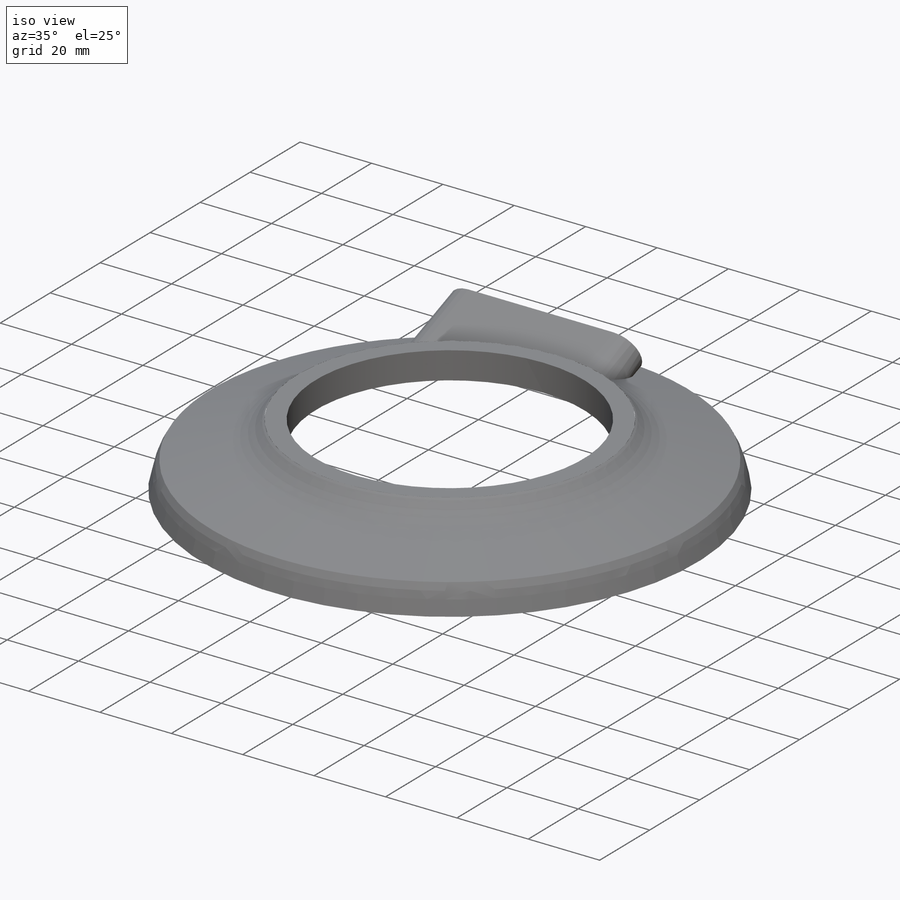
[diagram: iso view]
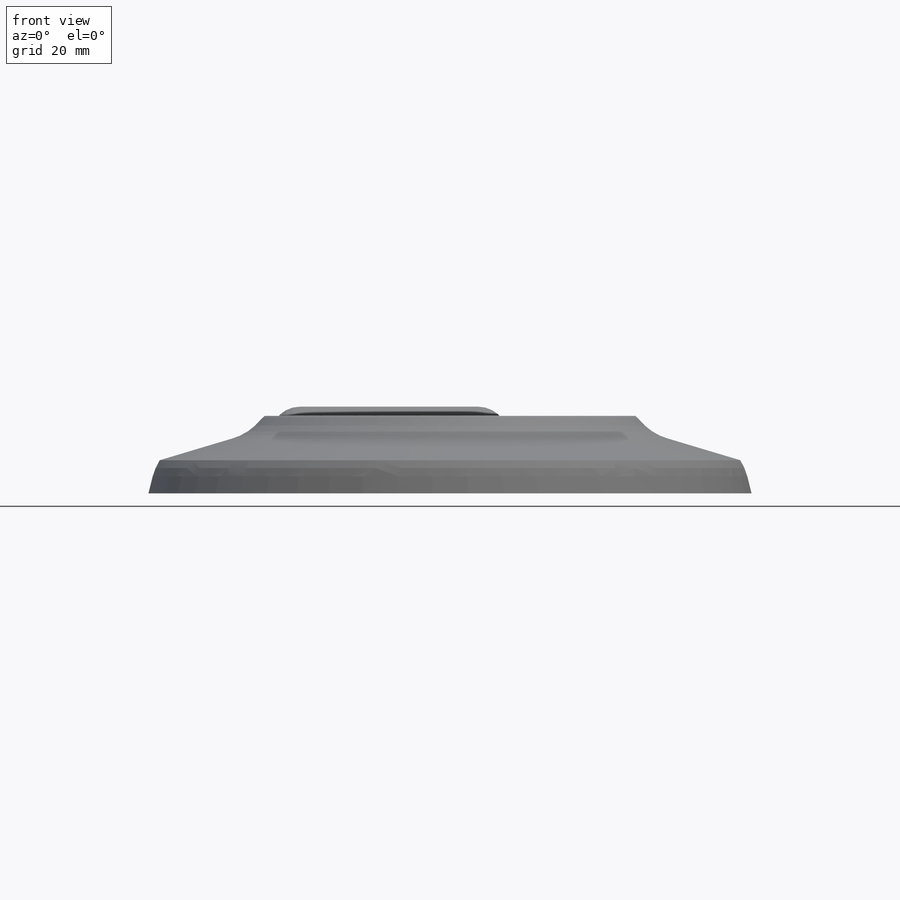
[diagram: front view]
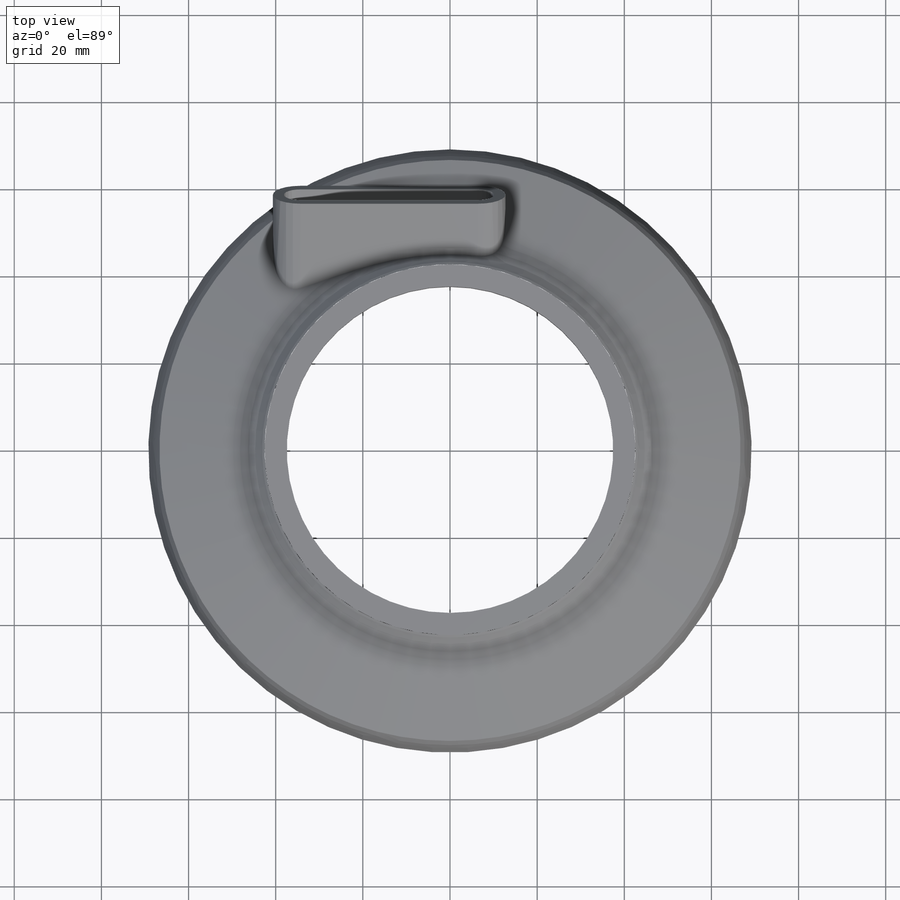
[diagram: top view]
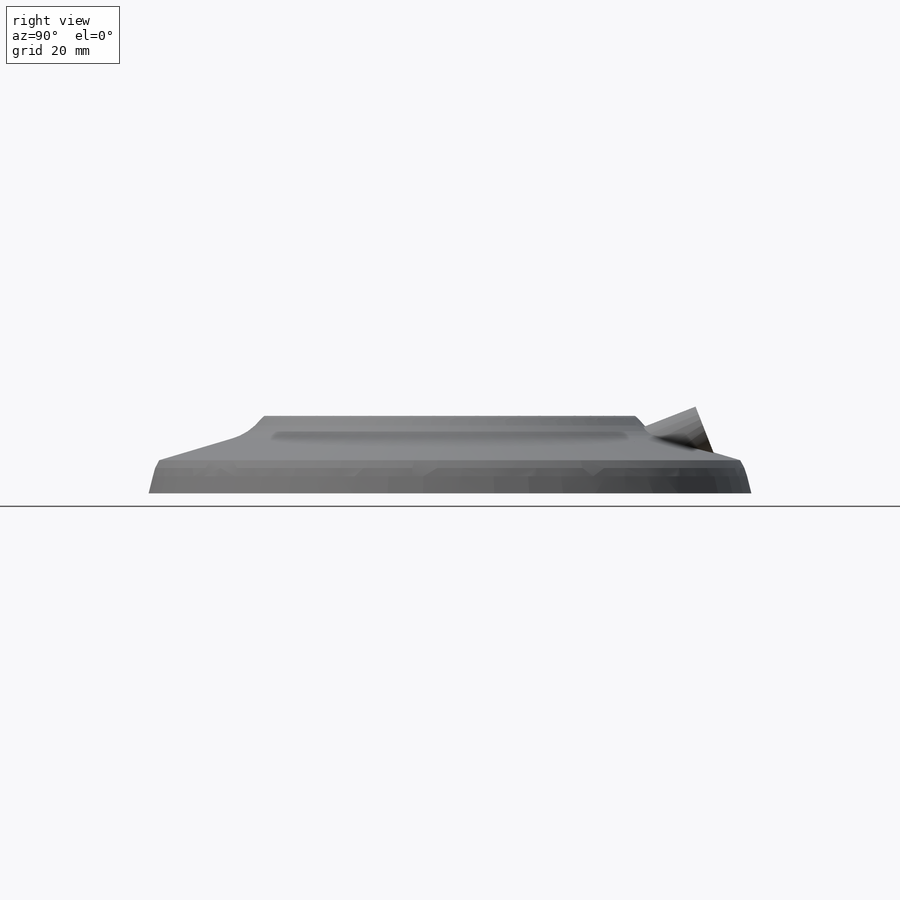
[diagram: right view]
SOLIDWORKS PART (.sldprt)
format: sldprt  version: not decoded by parser v0  size: 606,720 bytes
history: native  units: mm
features: sketch x8, plane x5, extrude x4, fillet x3, material x1, cut_extrude x1 (+13 scaffold rows collapsed)
feature tree (35):
  scaffold x13  (default folders/planes/origin — collapsed)
  material  "Material <not specified>"
  sketch  "Sketch1"  dims[D1=41.275mm]
  extrude  "Boss-Extrude1"  Depth=7.62mm
  plane  "Plane1"  Offset=3.81mm
  sketch  "Sketch3"  dims[c1.D1=90.17mm c2.D1=0.254mm]
  plane  "Plane2"  Offset=6.35mm
  sketch  "Sketch4"  dims[D1=~27.621466mm]
  extrude  "Loft-Thin5"  Depth=0.254mm
  plane  "Plane3"  Offset=7.62mm
  sketch  "Sketch5"  dims[D1=~82.572864mm]
  extrude  "Loft-Thin6"  Depth=1.27mm
  fillet  "Fillet2"  Radius=12.7mm
  fillet  "Fillet3"  Radius=12.7mm
  fillet  "Fillet7"  Radius=5.08mm
  plane  "Plane4"  Offset=50.8mm
  sketch  "Sketch6"  dims[c1.D4=6.35mm c1.D7=6.35mm c1.D1=15.24mm c1.D2=15.24mm c2.D1=53.34mm c2.D2=53.34mm c2.D3=12.7mm c2.D4=12.7mm c2.D5=5.08mm c2.D6=12.7mm c2.D7=0.0mm c3.D1=12.7mm c3.D4=2.54mm]
  sketch  "3DSketch2"
  plane  "Plane6"
  sketch  "Sketch25"  dims[D1=0.0mm D2=0.0mm]
  extrude  "Boss-Extrude14"  Depth=5.08mm
  sketch  "Sketch26"  dims[D1=0.0mm D2=0.0mm]
  cut_extrude  "Cut-Extrude15"  Depth=78.74mm
decode coverage: 15 of 16 modeling features carry decoded parameters
note: ~ marks probable driven/reference dimensions
note: suppression state not decoded; provenance and decode notes live in map.json
